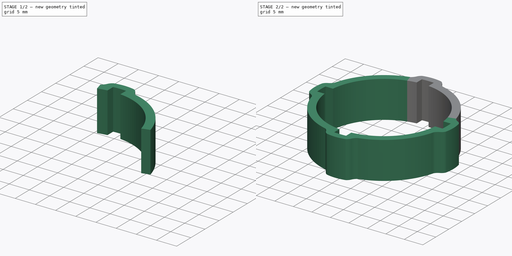
[diagram: build sequence overview — one tinted view per stage of 2, left to right]
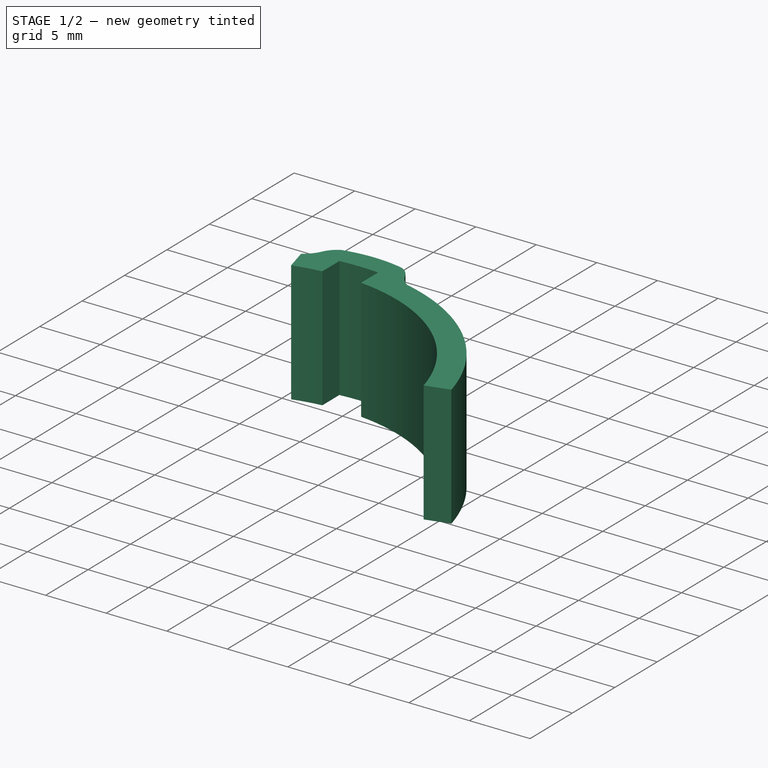
[diagram: stage 1 of 2 — iso view after this stage's code; geometry added in this stage tinted green]
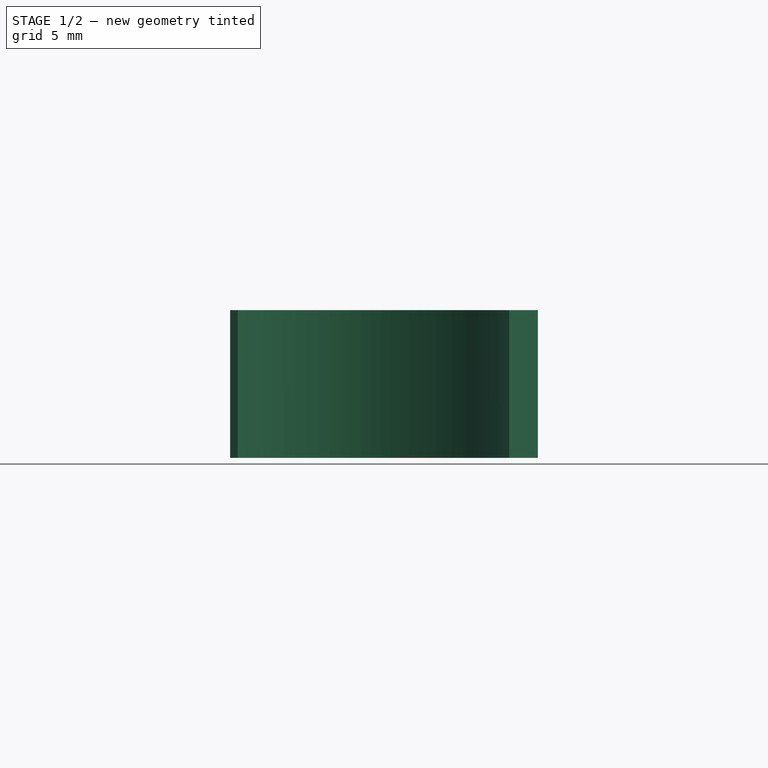
[diagram: stage 1 of 2 — front view after this stage's code; geometry added in this stage tinted green]
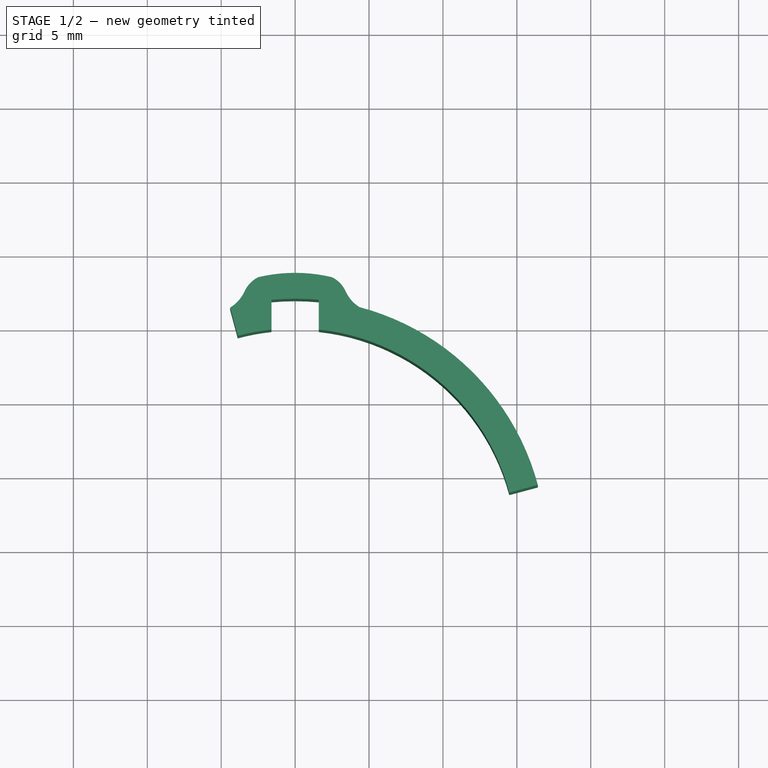
[diagram: stage 1 of 2 — top view after this stage's code; geometry added in this stage tinted green]
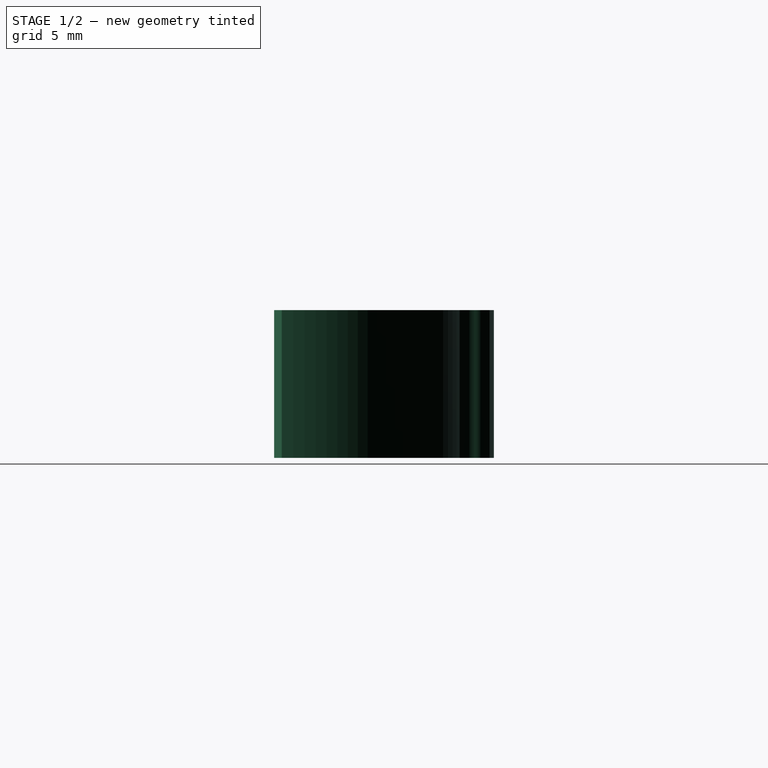
[diagram: stage 1 of 2 — right view after this stage's code; geometry added in this stage tinted green]
FCSTD DOCUMENT  (FreeCAD 0.21RUnknown)
Label: part5
License: All rights reserved
LicenseURL: https://en.wikipedia.org/wiki/All_rights_reserved
objects: Image::ImagePlane×1, Sketcher::SketchObject×1, PartDesign::Pad×1, PartDesign::PolarPattern×1, PartDesign::Body×1
note: 5 computed .brp shape members not serialized (recipe doc carries the construction recipe); baked Part::Feature solids carry a one-line shape summary decoded from their .brp

FEATURE [Image::ImagePlane] Top
  Placement = pos=(-0.5,-3,0) rot=(0,0,1;0rad)
  XSize = 122.867
  YSize = 81.5911
FEATURE [Sketcher::SketchObject] Sketch
  FullyConstrained = true
  MapMode = 5
  Support = -> [XY_Plane]
  sketch-geometry (15):
    g0: LineSegment StartX=0 StartY=0 StartZ=0 EndX=-4.39519 EndY=16.4031 EndZ=0
    g1: LineSegment StartX=0 StartY=0 StartZ=0 EndX=16.4207 EndY=4.39992 EndZ=0
    g2: ArcOfCircle CenterX=0 CenterY=0 CenterZ=0 NormalX=0 NormalY=0 NormalZ=1 AngleXU=0 Radius=17 StartAngle=0.261799 EndAngle=1.3125
    g3: ArcOfCircle CenterX=0 CenterY=0 CenterZ=0 NormalX=0 NormalY=0 NormalZ=1 AngleXU=0 Radius=15 StartAngle=0.261799 EndAngle=1.46393
    g4: LineSegment StartX=-4.39519 StartY=16.4031 StartZ=0 EndX=-3.88229 EndY=14.4889 EndZ=0
    g5: LineSegment StartX=16.4207 StartY=4.39992 StartZ=0 EndX=14.4889 EndY=3.88229 EndZ=0
    g6: ArcOfCircle CenterX=-5.69269 CenterY=18.54 CenterZ=0 NormalX=0 NormalY=0 NormalZ=1 AngleXU=0 Radius=2.5 StartAngle=5.25807 EndAngle=5.85444
    g7: ArcOfCircle CenterX=-1.6 CenterY=16.6692 CenterZ=0 NormalX=0 NormalY=0 NormalZ=1 AngleXU=0 Radius=2 StartAngle=2.03756 EndAngle=2.71284
    g8: ArcOfCircle CenterX=-3.1e-15 CenterY=8 CenterZ=0 NormalX=0 NormalY=0 NormalZ=1 AngleXU=0 Radius=10.75 StartAngle=1.33609 EndAngle=1.8055
    g9: ArcOfCircle CenterX=1.6 CenterY=16.6692 CenterZ=0 NormalX=0 NormalY=0 NormalZ=1 AngleXU=0 Radius=2 StartAngle=0.428748 EndAngle=1.10403
    g10: ArcOfCircle CenterX=5.69269 CenterY=18.54 CenterZ=0 NormalX=0 NormalY=0 NormalZ=1 AngleXU=0 Radius=2.5 StartAngle=3.57034 EndAngle=4.14179
    g11: LineSegment StartX=-1.6 StartY=16.9245 StartZ=0 EndX=-1.6 EndY=14.9144 EndZ=0
    g12: LineSegment StartX=1.6 StartY=16.9245 StartZ=0 EndX=1.6 EndY=14.9144 EndZ=0
    g13: ArcOfCircle CenterX=0 CenterY=0 CenterZ=0 NormalX=0 NormalY=0 NormalZ=1 AngleXU=0 Radius=15 StartAngle=1.67767 EndAngle=1.8326
    g14: ArcOfCircle CenterX=0 CenterY=0 CenterZ=0 NormalX=0 NormalY=0 NormalZ=1 AngleXU=0 Radius=17 StartAngle=1.47654 EndAngle=1.66505
  constraints (43):
    c: Coincident(g0,g-1)
    c: Coincident(g1,g0)
    c: Angle(g1,g0) = 1.5708
    c: Coincident(g2,g0)
    c: Coincident(g2,g1)
    c: PointOnObject(g13,g0)
    c: PointOnObject(g3,g1)
    c: Coincident(g4,g0)
    c: Coincident(g4,g13)
    c: Coincident(g5,g2)
    c: Coincident(g5,g3)
    c: Radius(g2) = 17
    c: Radius(g3) = 15
    c: Angle(g-1,g1) = 0.261799
    c: Coincident(g3,g2)
    c: Coincident(g6,g0)
    c: Coincident(g8,g7)
    c: Coincident(g9,g8)
    c: Tangent(g7,g6) = 1.5708
    c: Tangent(g10,g9) = 1.5708
    c: DistanceY(g2,g8) = 8
    c: Symmetric(g7,g8,g-2)
    c: Symmetric(g9,g7,g-2)
    c: Symmetric(g6,g10,g-2)
    c: Radius(g6) = 2.5
    c: Radius(g7) = 2
    c: Radius(g8) = 10.75
    c: DistanceX(g7,g9) = 3.2
    c: DistanceX(g7,g8) = 5
    c: Vertical(g11)
    c: Vertical(g12)
    c: Symmetric(g11,g12,g-2)
    c: PointOnObject(g7,g11)
    c: Coincident(g14,g11)
    c: DistanceY(g2,g6) = 18.54
    c: Equal(g3,g13)
    c: PointOnObject(g3,g12)
    c: Coincident(g13,g11)
    c: Coincident(g3,g13)
    c: Equal(g2,g14)
    c: Coincident(g2,g10)
    c: Coincident(g14,g12)
    c: Coincident(g2,g14)
FEATURE [PartDesign::Pad] Pad
  Direction = (0,0,1)
  Length = 10
  Length2 = 10
  Profile = -> Sketch
  ReferenceAxis = -> Sketch [N_Axis]
  Type = 0
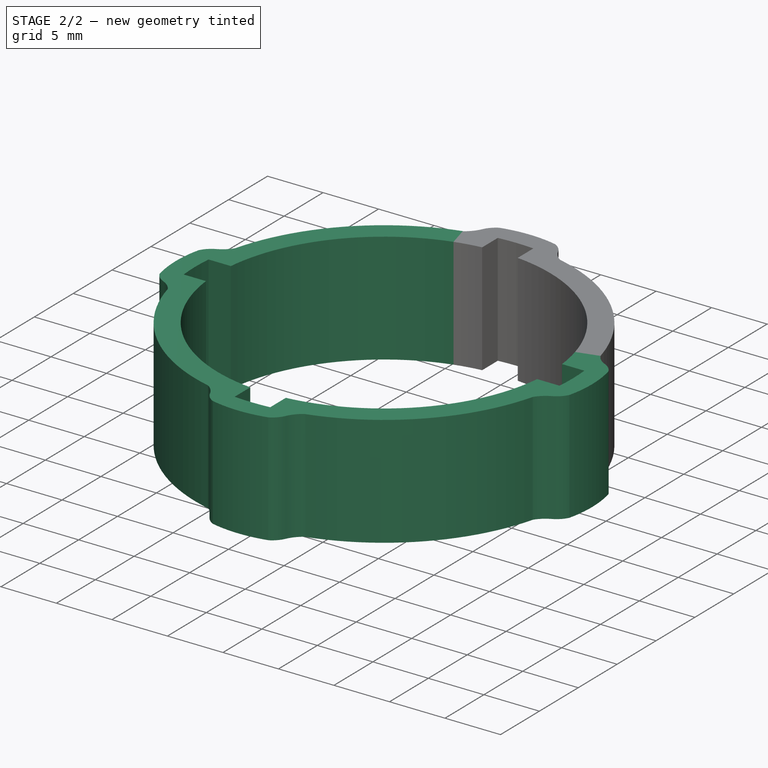
[diagram: stage 2 of 2 — iso view after this stage's code; geometry added in this stage tinted green]
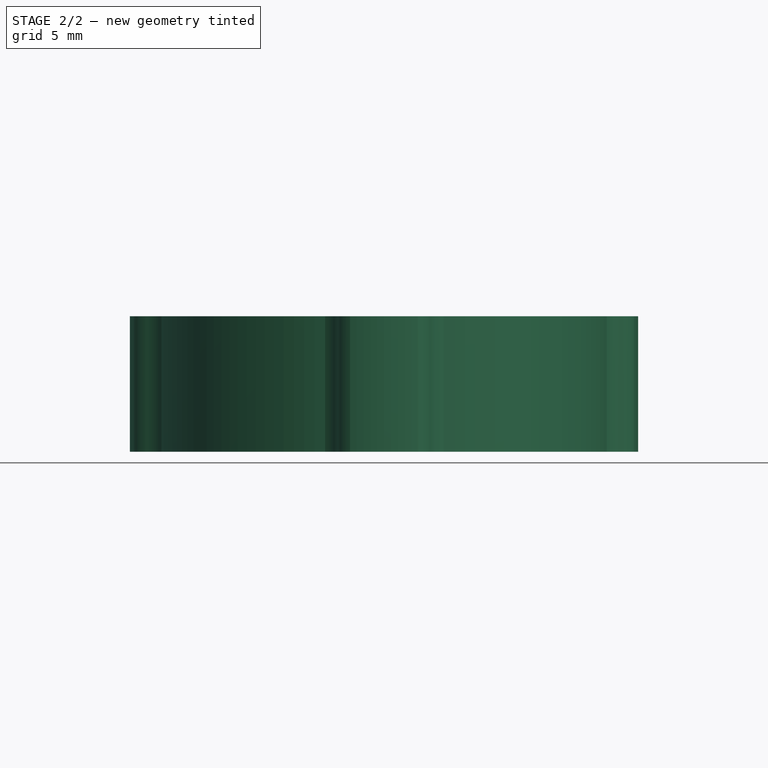
[diagram: stage 2 of 2 — front view after this stage's code; geometry added in this stage tinted green]
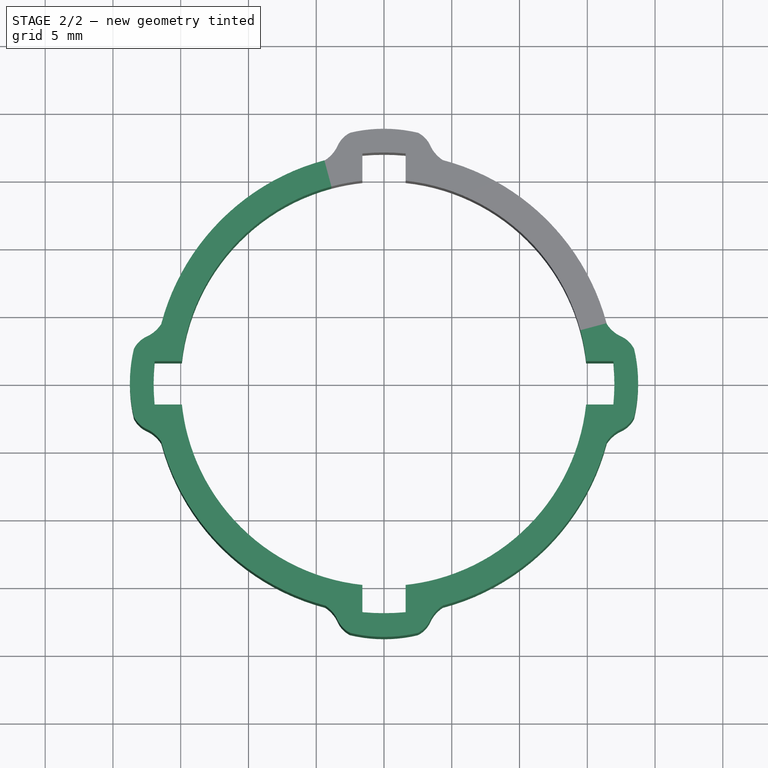
[diagram: stage 2 of 2 — top view after this stage's code; geometry added in this stage tinted green]
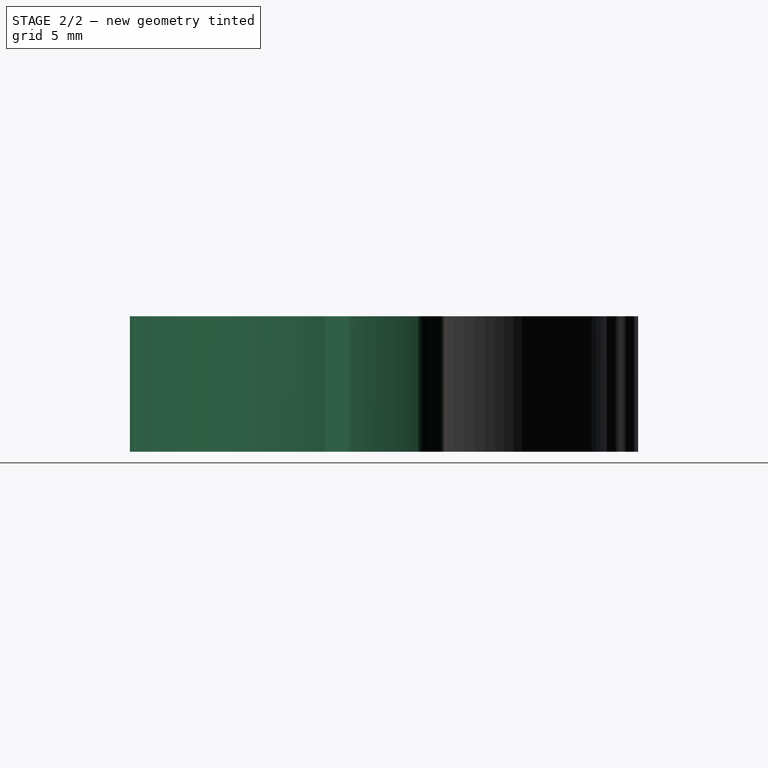
[diagram: stage 2 of 2 — right view after this stage's code; geometry added in this stage tinted green]
FEATURE [PartDesign::PolarPattern] PolarPattern
  Angle = 360
  Axis = -> Sketch [N_Axis]
  BaseFeature = -> Pad
  Occurrences = 4
  Originals = -> [Pad]
  Refine = true
FEATURE [PartDesign::Body] Body
  Group = -> [Sketch,Pad,PolarPattern]
  Origin = -> Origin
  Tip = -> PolarPattern
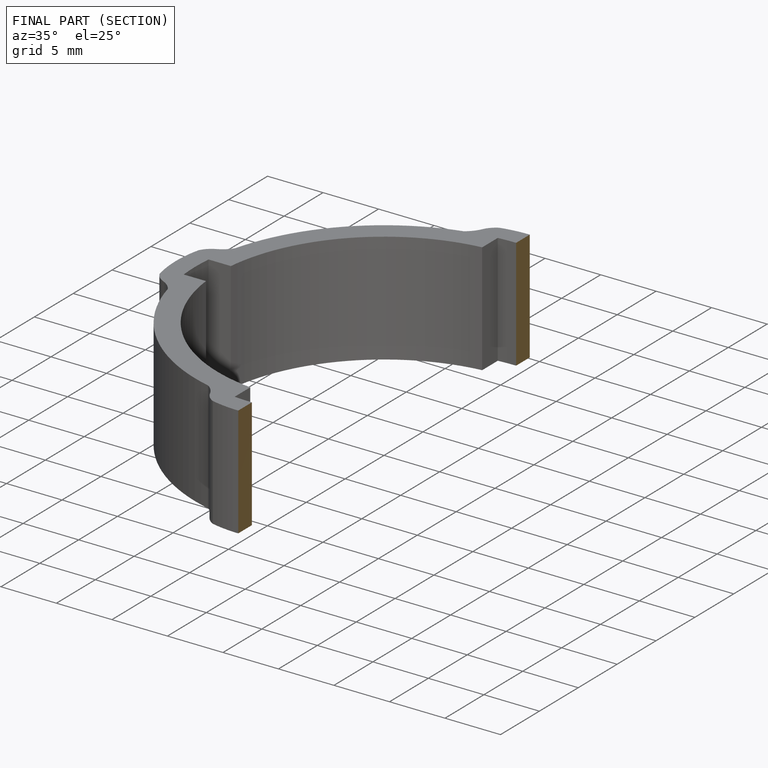
[diagram: finished part — half-section view (interior)]
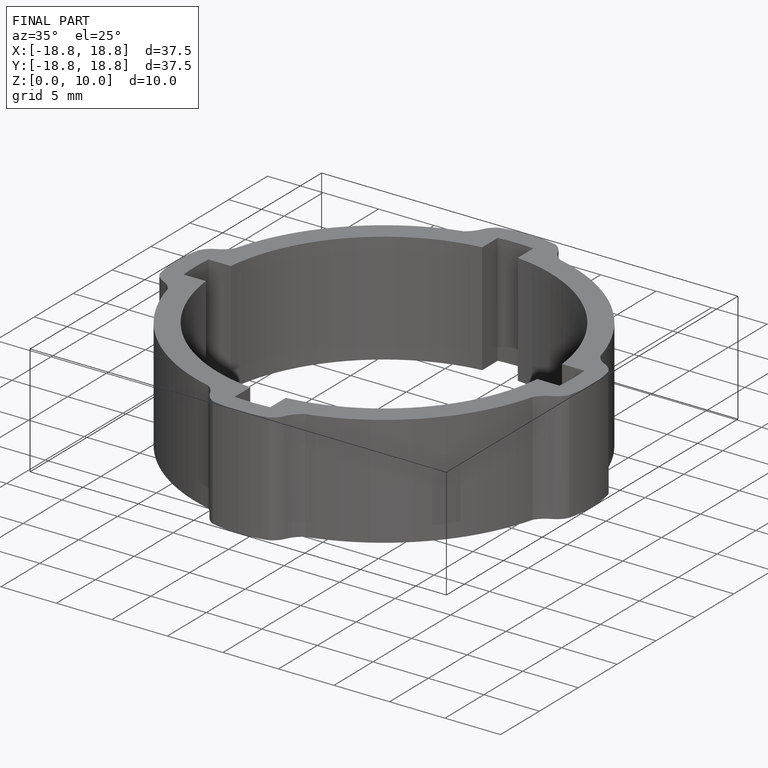
[diagram: finished part — iso view with bounding-box wireframe]
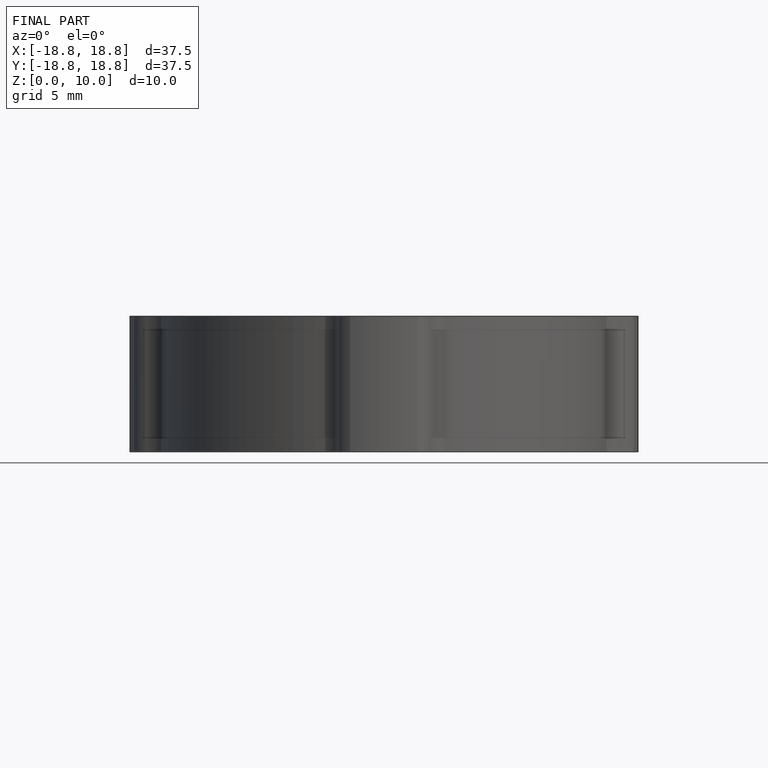
[diagram: finished part — front view with bounding-box wireframe]
